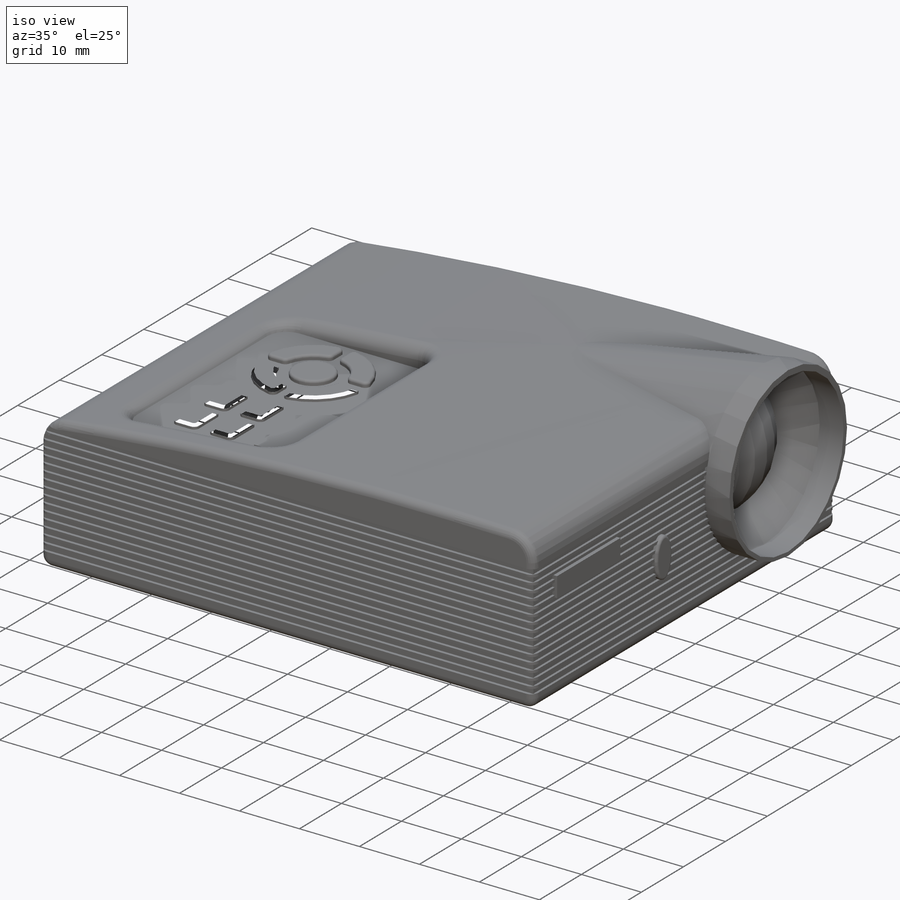
[diagram: iso view]
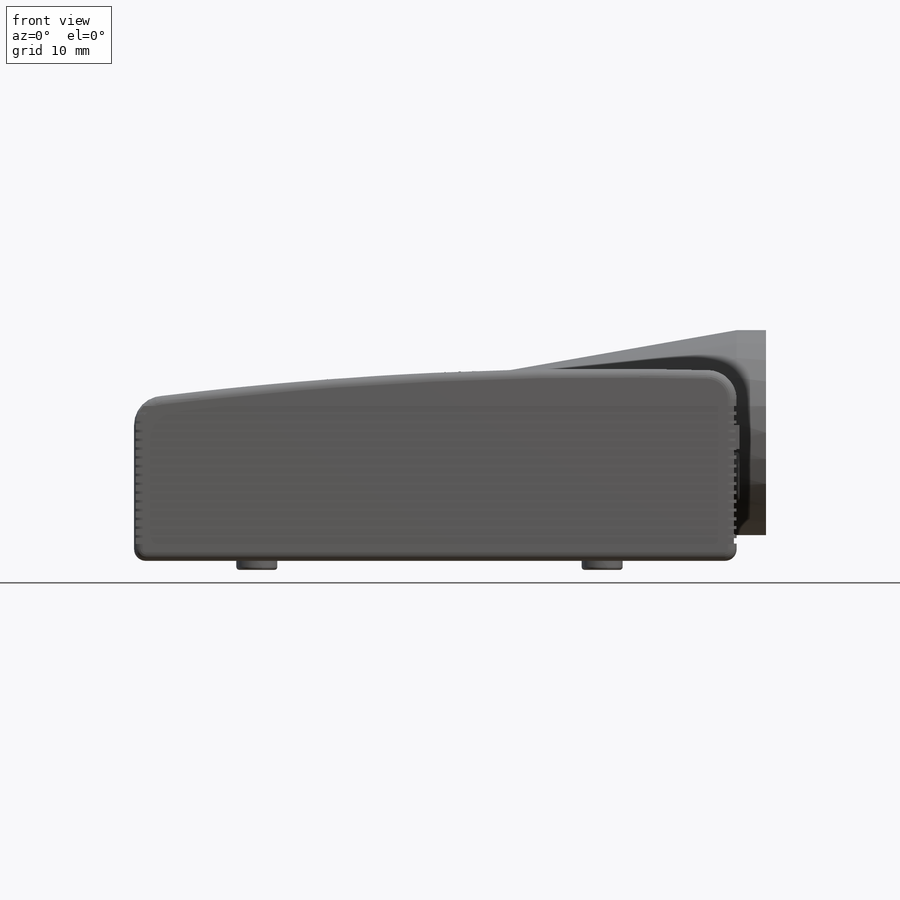
[diagram: front view]
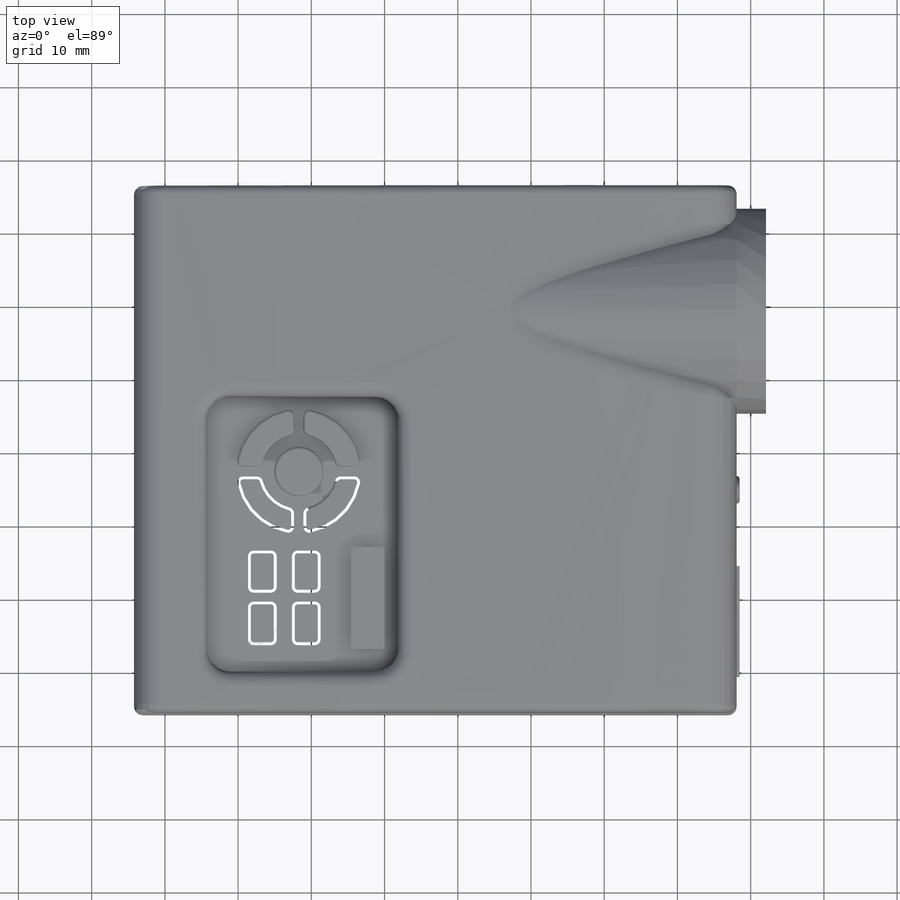
[diagram: top view]
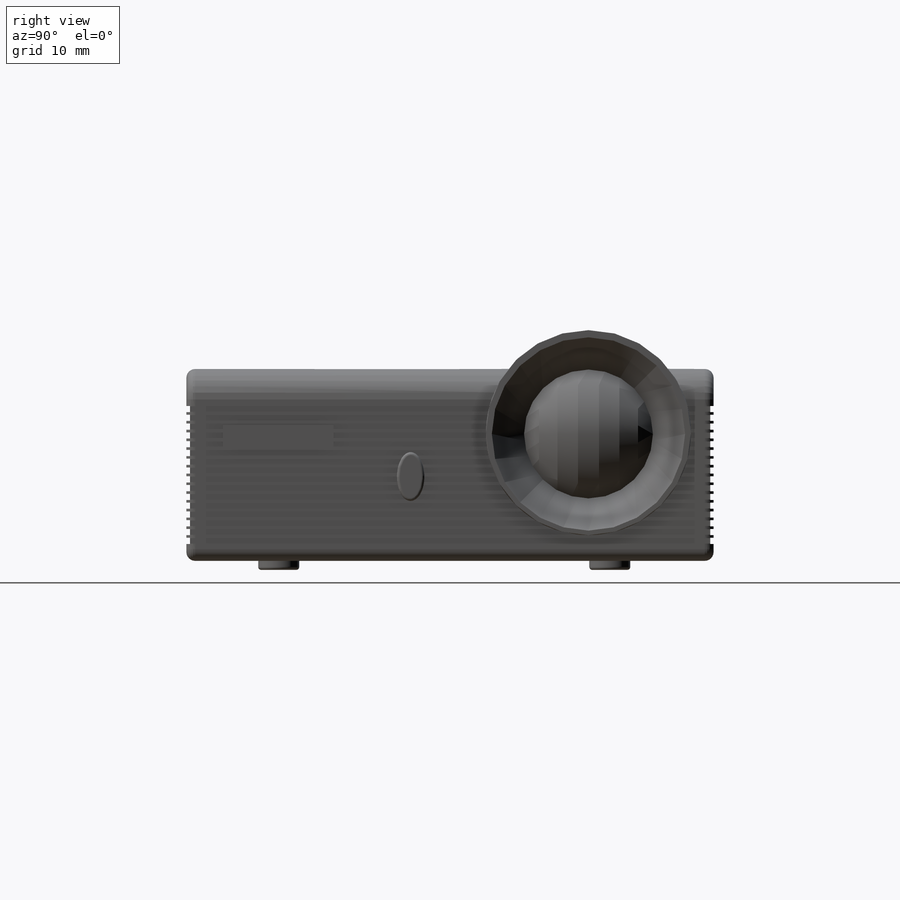
[diagram: right view]
SOLIDWORKS PART (.sldprt)
format: sldprt  version: not decoded by parser v0  size: 1,892,352 bytes
history: native  units: mm
features: sketch x13, cut_extrude x7, extrude x6, fillet x6, plane x5, material x1, chamfer x1, dome x1 (+11 scaffold rows collapsed)
feature tree (51):
  scaffold x11  (default folders/planes/origin — collapsed)
  material  "Материал <не указан>"
  sketch  "Эскиз1"  dims[D1=4.0mm]
  extrude  "Бобышка-Вытянуть1"  Depth=180mm
  fillet  "Скругление2"  Radius=3mm
  sketch  "Эскиз2"  dims[D1=16.0]
  cut_extrude  "Вырез-Вытянуть1"  Depth=180mm
  sketch  "Эскиз3"  dims[D2=2.0 D1=16.0]
  cut_extrude  "Вырез-Вытянуть2"  Depth=80mm
  plane  "Плоскость1"
  sketch  "Эскиз4"  dims[D1=~32.857635mm]
  extrude  "Бобышка-Вытянуть2"  Depth=10mm
  sketch  "Эскиз5"  dims[D1=30.0mm]
  cut_extrude  "Вырез-Вытянуть3"  Depth=11mm
  sketch  "Эскиз7"
  extrude  "Бобышка-Вытянуть4"  Depth=1mm
  fillet  "Скругление3"  Radius=1mm
  sketch  "Эскиз8"
  cut_extrude  "Вырез-Вытянуть5"  Depth=20mm
  plane  "Плоскость2"  Offset=40mm
  sketch  "Эскиз9"  dims[D1=2.0mm]
  cut_extrude  "Вырез-Вытянуть6"  Depth=25mm
  fillet  "Скругление6"  Radius=5mm
  plane  "Плоскость3"
  sketch  "Эскиз10"  dims[D1=2.0mm]
  extrude  "Бобышка-Вытянуть5"  Depth=2mm
  plane  "Плоскость4"
  sketch  "Эскиз11"  dims[D2=2.0mm D4=6.0]
  cut_extrude  "Вырез-Вытянуть7"  Depth=2mm
  sketch  "Эскиз13"  dims[c1.D1=2.0mm c1.D2=6.0 c2.D1=2.0]
  cut_extrude  "Вырез-Вытянуть8"  Depth=8mm
  chamfer  "Фаска2"  Distance=0.5mm Angle=45deg
  fillet  "Скругление7"  Radius=1mm
  sketch  "Эскиз14"  dims[D1=~7.616764mm]
  extrude  "Бобышка-Вытянуть6"  Depth=43mm
  fillet  "Скругление8"  Radius=1mm
  fillet  "Скругление9"  Radius=1mm
  plane  "Плоскость5"
  sketch  "Эскиз16"
  extrude  "Бобышка-Вытянуть8"  Depth=4mm
  dome  "Купол1"
decode coverage: 30 of 34 modeling features carry decoded parameters
note: ~ marks probable driven/reference dimensions
note: suppression state not decoded; provenance and decode notes live in map.json
